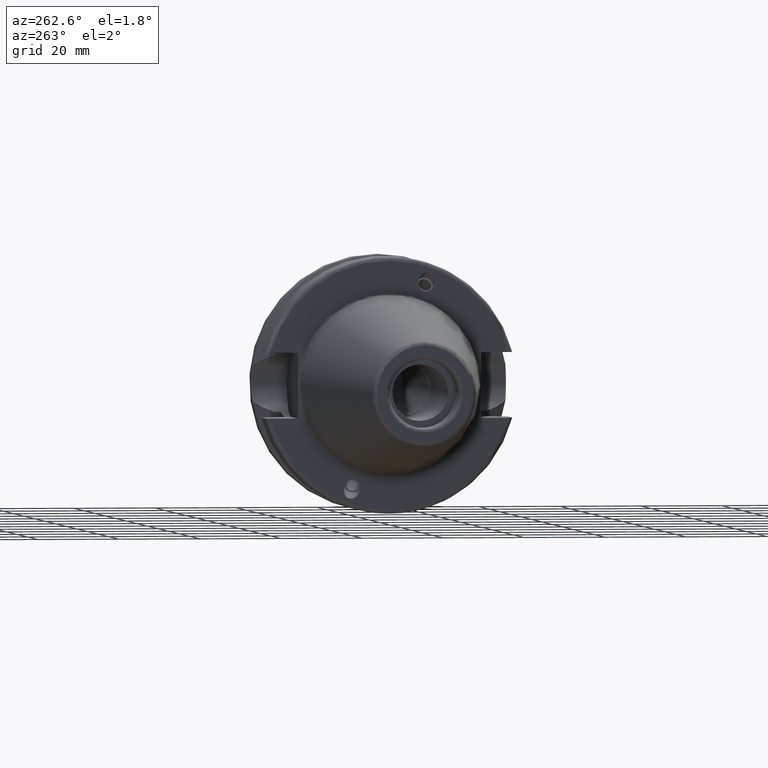
[diagram: clean part render]
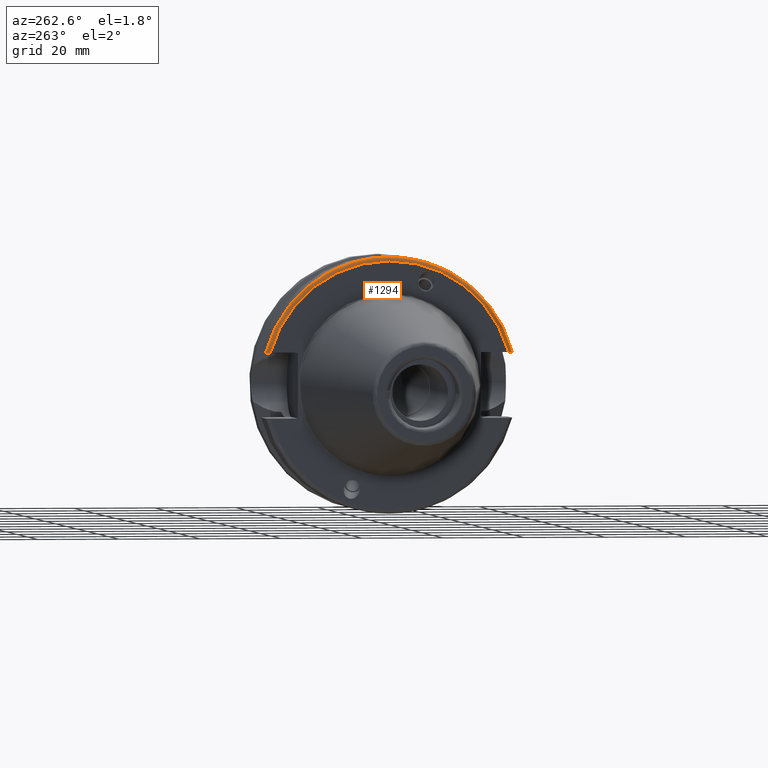
[diagram: same view with one face highlighted and labeled with its STEP entity id]
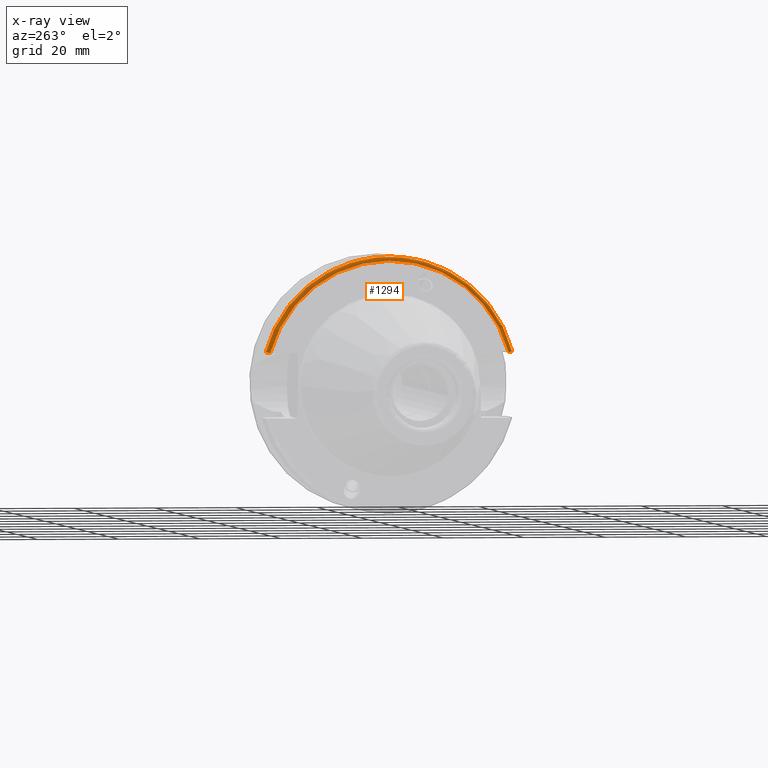
[diagram: x-ray of the same camera — body ghosted, the highlighted face saturated]
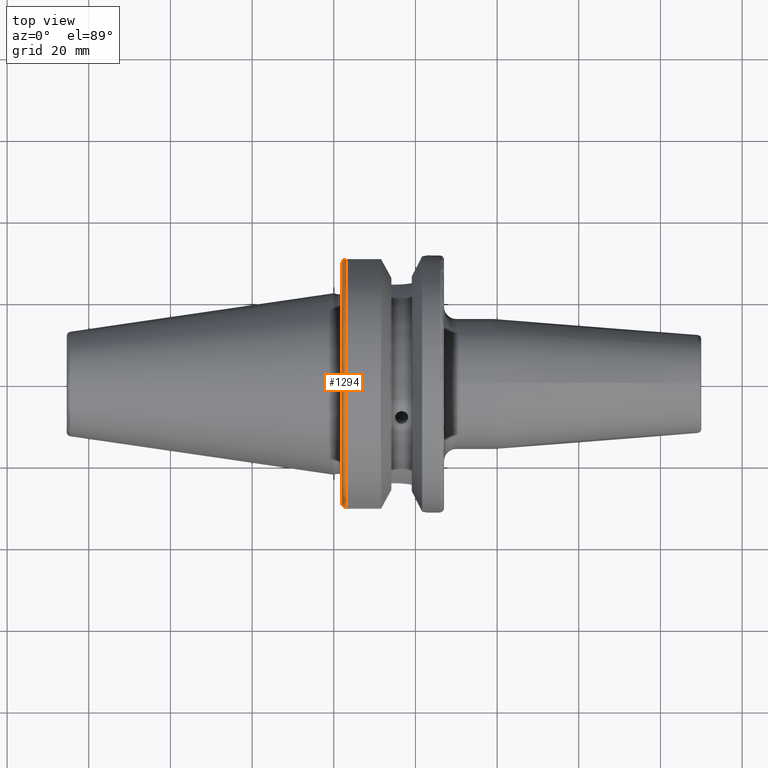
[diagram: same view with one face highlighted and labeled with its STEP entity id]
A machine part, auxiliary view. The second image highlights one B-rep face of the part: STEP entity #1294.
The next image is the same camera in x-ray: the body ghosted, the highlighted face saturated — about 0% of this face is hidden behind the body in this view.
A second angle (top view) of the same face is appended — the face is thin or edge-on in the first view.
In plain terms, the highlighted toroidal blend (fillet) surface has major radius 30.5 mm and minor (blend) radius 1 mm.
Its self-contained STEP definition (entity closure, byte-faithful):
#36=B_SPLINE_CURVE_WITH_KNOTS('',3,(#2303,#2304,#2305,#2306,#2307,#2308,
#2309,#2310,#2311,#2312),.UNSPECIFIED.,.F.,.F.,(4,2,2,2,4),(-0.150751871388631,
-0.111946181815504,-0.0738743445372396,-0.0366169489027566,0.),
 .UNSPECIFIED.);
#44=B_SPLINE_CURVE_WITH_KNOTS('',3,(#2444,#2445,#2446,#2447,#2448,#2449,
#2450,#2451,#2452,#2453),.UNSPECIFIED.,.F.,.F.,(4,2,2,2,4),(0.,0.0366169489027566,
0.0738743445372396,0.111946181815504,0.150751871388631),.UNSPECIFIED.);
#71=TOROIDAL_SURFACE('',#1482,30.5,1.00000000000001);
#206=FACE_OUTER_BOUND('',#300,.T.);
#300=EDGE_LOOP('',(#1169,#1170,#1171,#1172));
#376=CIRCLE('',#1481,30.5);
#377=CIRCLE('',#1483,31.5);
#591=VERTEX_POINT('',#2300);
#592=VERTEX_POINT('',#2302);
#619=VERTEX_POINT('',#2441);
#620=VERTEX_POINT('',#2443);
#747=EDGE_CURVE('',#592,#591,#36,.T.);
#788=EDGE_CURVE('',#620,#619,#44,.T.);
#819=EDGE_CURVE('',#619,#592,#376,.T.);
#820=EDGE_CURVE('',#620,#591,#377,.T.);
#1169=ORIENTED_EDGE('',*,*,#747,.T.);
#1170=ORIENTED_EDGE('',*,*,#820,.F.);
#1171=ORIENTED_EDGE('',*,*,#788,.T.);
#1172=ORIENTED_EDGE('',*,*,#819,.T.);
#1294=ADVANCED_FACE('',(#206),#71,.T.);
#1481=AXIS2_PLACEMENT_3D('',#2518,#1877,#1878);
#1482=AXIS2_PLACEMENT_3D('',#2519,#1879,#1880);
#1483=AXIS2_PLACEMENT_3D('',#2520,#1881,#1882);
#1877=DIRECTION('center_axis',(1.,0.,0.));
#1878=DIRECTION('ref_axis',(0.,0.,-1.));
#1879=DIRECTION('center_axis',(1.,0.,0.));
#1880=DIRECTION('ref_axis',(0.,-1.22464679914735E-16,1.));
#1881=DIRECTION('center_axis',(1.,0.,0.));
#1882=DIRECTION('ref_axis',(0.,0.,-1.));
#2300=CARTESIAN_POINT('',(2.99999999999999,-30.4540227227866,8.05));
#2302=CARTESIAN_POINT('',(1.99999999999999,-29.4184890842477,8.05));
#2303=CARTESIAN_POINT('Ctrl Pts',(1.99999999999999,-29.4184890842477,8.05));
#2304=CARTESIAN_POINT('Ctrl Pts',(1.99999999999999,-29.5478413828248,8.05));
#2305=CARTESIAN_POINT('Ctrl Pts',(2.02950258743517,-29.7002346307938,8.05));
#2306=CARTESIAN_POINT('Ctrl Pts',(2.12587454939785,-29.9376810968085,8.05));
#2307=CARTESIAN_POINT('Ctrl Pts',(2.2089547883793,-30.0653098968133,8.05));
#2308=CARTESIAN_POINT('Ctrl Pts',(2.38465986426588,-30.2446912007727,8.05));
#2309=CARTESIAN_POINT('Ctrl Pts',(2.50758665841081,-30.3289456947341,8.05));
#2310=CARTESIAN_POINT('Ctrl Pts',(2.73442803339431,-30.4247631098996,8.05));
#2311=CARTESIAN_POINT('Ctrl Pts',(2.87794350365748,-30.4540227227866,8.05));
#2312=CARTESIAN_POINT('Ctrl Pts',(3.,-30.4540227227866,8.05));
#2441=CARTESIAN_POINT('',(1.99999999999999,29.4184890842477,8.05));
#2443=CARTESIAN_POINT('',(2.99999999999999,30.4540227227866,8.05));
#2444=CARTESIAN_POINT('Ctrl Pts',(3.,30.4540227227866,8.05));
#2445=CARTESIAN_POINT('Ctrl Pts',(2.87794350365748,30.4540227227866,8.05));
#2446=CARTESIAN_POINT('Ctrl Pts',(2.73442803339431,30.4247631098996,8.05));
#2447=CARTESIAN_POINT('Ctrl Pts',(2.50758665841081,30.3289456947341,8.05));
#2448=CARTESIAN_POINT('Ctrl Pts',(2.38465986426588,30.2446912007727,8.05));
#2449=CARTESIAN_POINT('Ctrl Pts',(2.2089547883793,30.0653098968133,8.05));
#2450=CARTESIAN_POINT('Ctrl Pts',(2.12587454939785,29.9376810968085,8.05));
#2451=CARTESIAN_POINT('Ctrl Pts',(2.02950258743517,29.7002346307938,8.05));
#2452=CARTESIAN_POINT('Ctrl Pts',(1.99999999999999,29.5478413828248,8.05));
#2453=CARTESIAN_POINT('Ctrl Pts',(1.99999999999999,29.4184890842477,8.05));
#2518=CARTESIAN_POINT('Origin',(1.99999999999999,0.,0.));
#2519=CARTESIAN_POINT('Origin',(3.,0.,0.));
#2520=CARTESIAN_POINT('Origin',(2.99999999999999,0.,0.));